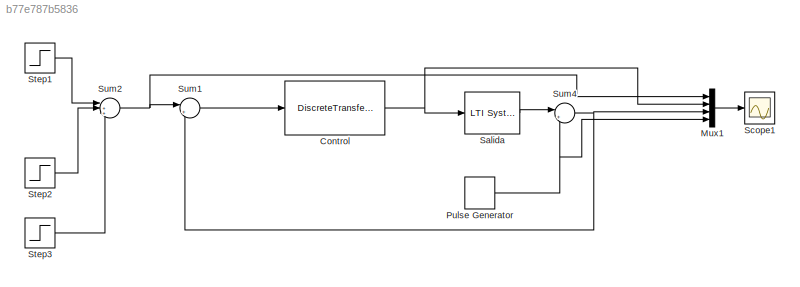
MODEL slx_b77e787b5836
KIND model
CONFIG AbsTol = auto
CONFIG EnableMultiTasking = off
CONFIG FixedStep = auto
CONFIG MaxStep = auto
CONFIG MinStep = auto
CONFIG RelTol = 1e-3
CONFIG SampleTimeConstraint = Unconstrained
CONFIG SolverName = VariableStepAuto
CONFIG StartTime = 0.0
CONFIG StopTime = 100
BLOCK [DiscreteTransferFcn] Control
  Denominator = [1 -1]
  InputPortMap = u0
  Numerator = [q0 q1]
  Ports = [1, 1]
BLOCK [Mux] Mux1
  DisplayOption = bar
  Ports = [4, 1]
BLOCK [DiscretePulseGenerator] Pulse Generator
  Period = 100
  Ports = [0, 1]
  PulseType = Time based
  PulseWidth = 50
BLOCK [Reference] Salida  REF=cstblocks/LTI System
  Ports = [1, 1]
  SourceBlock = cstblocks/LTI System
  SourceProductBaseCode = CT
  SourceType = LTI Block
BLOCK [Scope] Scope1
  Floating = off
  NumInputPorts = 1
  Ports = [1]
  ScopeSpecificationString = Simulink.scopes.TimeScopeBlockCfg('CurrentConfiguration', extmgr.ConfigurationSet(extmgr.Configuration('Core','General UI',true,'FigureColor',[1 1 1]),extmgr.Configuration('Core','Source UI',true),extmgr.Configuration('Sources','WiredSimulink',true,'DataLoggingVariableName','ScopeData2'),extmgr.Configuration('Visuals','Time Domain',true,'SerializedDisplays',{struct('MinYLimReal','-4.86597','MaxYLi...<+2255ch>
BLOCK [Step] Step1
  After = 10
  SampleTime = 0
  Time = 0
BLOCK [Step] Step2
  After = 30
  SampleTime = 0
  Time = 31
BLOCK [Step] Step3
  After = -10
  SampleTime = 0
  Time = 61
BLOCK [Sum] Sum1
  Inputs = |+-
  Ports = [2, 1]
BLOCK [Sum] Sum2
  Inputs = |+++
  Ports = [3, 1]
BLOCK [Sum] Sum4
  Inputs = |++
  Ports = [2, 1]
NET Control:1 -> Mux1:2, Salida:1
LINE Mux1:1 -> Scope1:1
NET Pulse Generator:1 -> Mux1:4, Sum4:2
LINE Salida:1 -> Sum4:1
LINE Step1:1 -> Sum2:1
LINE Step2:1 -> Sum2:2
LINE Step3:1 -> Sum2:3
LINE Sum1:1 -> Control:1
NET Sum2:1 -> Mux1:1, Sum1:1
NET Sum4:1 -> Mux1:3, Sum1:2
note: NET lines group one-source signal fan-out (src -> all destinations, sorted); 1:1 wires keep LINE
